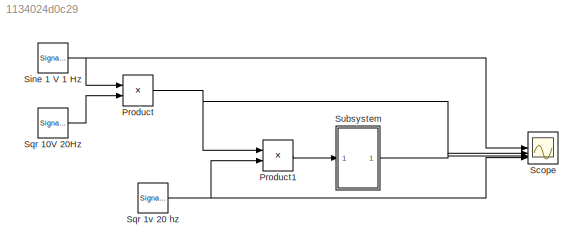
MODEL slx_1134024d0c29
KIND model
CONFIG AbsTol = auto
CONFIG EnableMultiTasking = off
CONFIG FixedStep = auto
CONFIG MaxStep = auto
CONFIG MinStep = auto
CONFIG RelTol = 1e-3
CONFIG SampleTimeConstraint = Unconstrained
CONFIG SolverName = VariableStepAuto
CONFIG StartTime = 0.0
CONFIG StopTime = 10.0
BLOCK [Product] Product
BLOCK [Product] Product1
BLOCK [Scope] Scope
  Floating = off
  NumInputPorts = 4
  ScopeSpecificationString = Simulink.scopes.TimeScopeBlockCfg('CurrentConfiguration', extmgr.ConfigurationSet(extmgr.Configuration('Core','General UI',true),extmgr.Configuration('Core','Source UI',true),extmgr.Configuration('Sources','WiredSimulink',true),extmgr.Configuration('Visuals','Time Domain',true,'SerializedDisplays',{struct('MinYLimReal','-1.24999','MaxYLimReal','1.24999','YLabelReal','','MinYLimMag','0.00000','MaxY...<+3343ch>
BLOCK [SignalGenerator] Sine 1 V 1 Hz
  Units = rad/sec
  VectorParams1D = off
BLOCK [SignalGenerator] Sqr 10V 20Hz
  Amplitude = 10
  Frequency = 20
  Units = rad/sec
  VectorParams1D = off
  WaveForm = square
BLOCK [SignalGenerator] Sqr 1v 20 hz
  Frequency = 20
  Units = rad/sec
  WaveForm = square
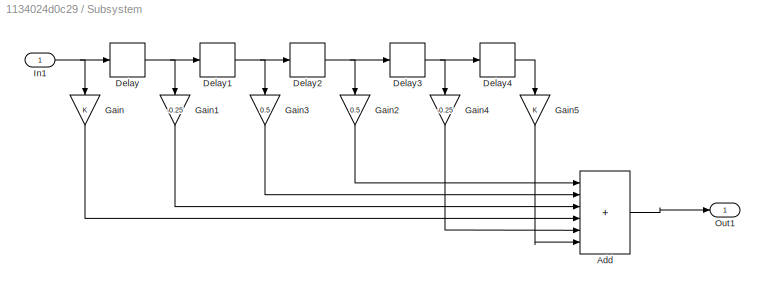
BLOCK [SubSystem] Subsystem
BLOCK [Sum] Subsystem/Add
  IconShape = rectangular
  Inputs = ++++++
BLOCK [Delay] Subsystem/Delay
  DelayLength = 1
  InputPortMap = u0
BLOCK [Delay] Subsystem/Delay1
  DelayLength = 1
  InputPortMap = u0
BLOCK [Delay] Subsystem/Delay2
  DelayLength = 1
  InputPortMap = u0
BLOCK [Delay] Subsystem/Delay3
  DelayLength = 1
  InputPortMap = u0
BLOCK [Delay] Subsystem/Delay4
  DelayLength = 1
  InputPortMap = u0
BLOCK [Gain] Subsystem/Gain
  NameLocation = left
BLOCK [Gain] Subsystem/Gain1
  Gain = -0.25
  NameLocation = left
BLOCK [Gain] Subsystem/Gain2
  Gain = 0.5
  NameLocation = left
BLOCK [Gain] Subsystem/Gain3
  Gain = 0.5
  NameLocation = left
BLOCK [Gain] Subsystem/Gain4
  Gain = -0.25
  NameLocation = left
BLOCK [Gain] Subsystem/Gain5
  NameLocation = left
BLOCK [Inport] Subsystem/In1
BLOCK [Outport] Subsystem/Out1
LINE Product1:1 -> Subsystem:1
NET Product:1 -> Product1:1, Scope:2
NET Sine 1 V 1 Hz:1 -> Product:1, Scope:1
LINE Sqr 10V 20Hz:1 -> Product:2
NET Sqr 1v 20 hz:1 -> Product1:2, Scope:4
LINE Subsystem/Add:1 -> Subsystem/Out1:1
NET Subsystem/Delay1:1 -> Subsystem/Delay2:1, Subsystem/Gain3:1
NET Subsystem/Delay2:1 -> Subsystem/Delay3:1, Subsystem/Gain2:1
NET Subsystem/Delay3:1 -> Subsystem/Delay4:1, Subsystem/Gain4:1
LINE Subsystem/Delay4:1 -> Subsystem/Gain5:1
NET Subsystem/Delay:1 -> Subsystem/Delay1:1, Subsystem/Gain1:1
LINE Subsystem/Gain1:1 -> Subsystem/Add:3
LINE Subsystem/Gain2:1 -> Subsystem/Add:1
LINE Subsystem/Gain3:1 -> Subsystem/Add:2
LINE Subsystem/Gain4:1 -> Subsystem/Add:5
LINE Subsystem/Gain5:1 -> Subsystem/Add:6
LINE Subsystem/Gain:1 -> Subsystem/Add:4
NET Subsystem/In1:1 -> Subsystem/Delay:1, Subsystem/Gain:1
LINE Subsystem:1 -> Scope:3
note: NET lines group one-source signal fan-out (src -> all destinations, sorted); 1:1 wires keep LINE
